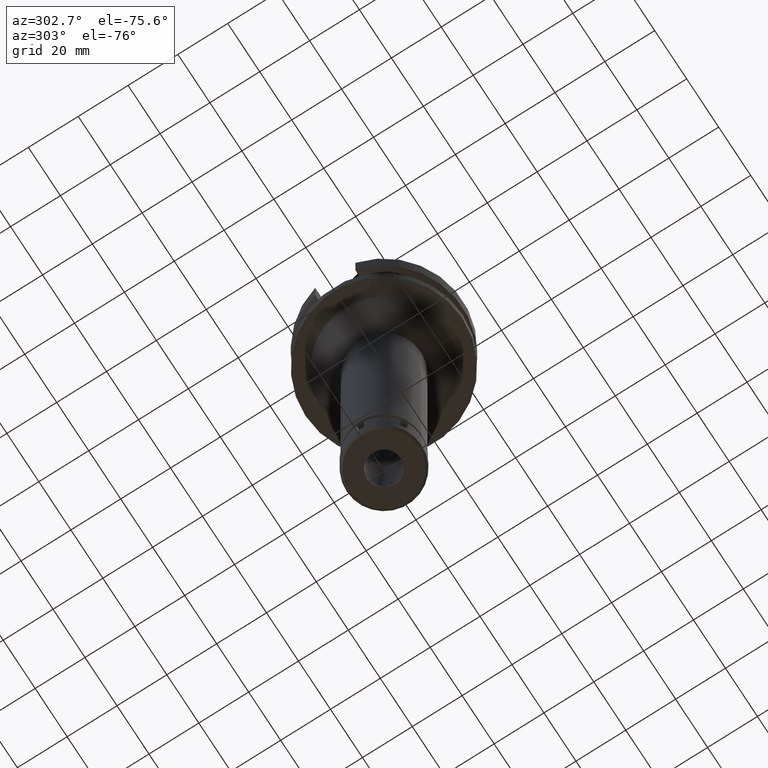
[diagram: clean part render]
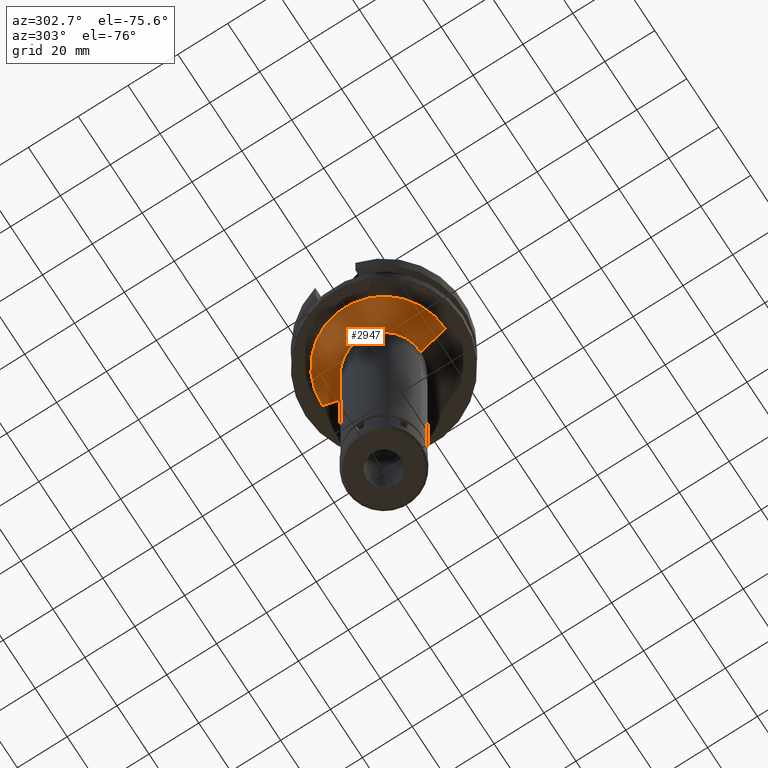
[diagram: same view with one face highlighted and labeled with its STEP entity id]
A machine part, auxiliary view. The second image highlights one B-rep face of the part: STEP entity #2947.
In plain terms, the highlighted conical surface has half-angle 45 deg.
Its self-contained STEP definition (entity closure, byte-faithful):
#131 = AXIS2_PLACEMENT_3D ( 'NONE', #258, #3090, #308 ) ;
#258 = CARTESIAN_POINT ( 'NONE',  ( 0.0000000000000000000, 0.0000000000000000000, -27.00000000000000000 ) ) ;
#308 = DIRECTION ( 'NONE',  ( 0.0000000000000000000, -1.000000000000000000, 0.0000000000000000000 ) ) ;
#789 = VERTEX_POINT ( 'NONE', #3604 ) ;
#846 = ORIENTED_EDGE ( 'NONE', *, *, #3330, .F. ) ;
#988 = DIRECTION ( 'NONE',  ( 0.0000000000000000000, -1.000000000000000000, 0.0000000000000000000 ) ) ;
#1064 = DIRECTION ( 'NONE',  ( 0.0000000000000000000, -0.7071067811865474617, -0.7071067811865474617 ) ) ;
#1258 = CARTESIAN_POINT ( 'NONE',  ( 0.0000000000000000000, 0.0000000000000000000, -32.00000000000000000 ) ) ;
#1295 = DIRECTION ( 'NONE',  ( 0.0000000000000000000, 0.0000000000000000000, 1.000000000000000000 ) ) ;
#1338 = VERTEX_POINT ( 'NONE', #3434 ) ;
#1391 = ORIENTED_EDGE ( 'NONE', *, *, #2654, .F. ) ;
#1483 = AXIS2_PLACEMENT_3D ( 'NONE', #1258, #1295, #3524 ) ;
#1661 = AXIS2_PLACEMENT_3D ( 'NONE', #2893, #2040, #988 ) ;
#1671 = VECTOR ( 'NONE', #3029, 1000.000000000000114 ) ;
#1707 = VERTEX_POINT ( 'NONE', #2816 ) ;
#1926 = LINE ( 'NONE', #2750, #1671 ) ;
#2040 = DIRECTION ( 'NONE',  ( 0.0000000000000000000, 0.0000000000000000000, -1.000000000000000000 ) ) ;
#2059 = EDGE_CURVE ( 'NONE', #2384, #1338, #2714, .T. ) ;
#2384 = VERTEX_POINT ( 'NONE', #2844 ) ;
#2531 = CIRCLE ( 'NONE', #1661, 14.75000000000000000 ) ;
#2593 = CONICAL_SURFACE ( 'NONE', #1483, 19.75000000000000000, 0.7853981633972997312 ) ;
#2626 = EDGE_CURVE ( 'NONE', #1338, #789, #3382, .T. ) ;
#2654 = EDGE_CURVE ( 'NONE', #2384, #1707, #1926, .T. ) ;
#2714 = CIRCLE ( 'NONE', #131, 24.75000000000000000 ) ;
#2750 = CARTESIAN_POINT ( 'NONE',  ( 0.0000000000000000000, -24.75000000000000000, -27.00000000000000000 ) ) ;
#2816 = CARTESIAN_POINT ( 'NONE',  ( 0.0000000000000000000, -14.75000000000000000, -37.00000000000000000 ) ) ;
#2844 = CARTESIAN_POINT ( 'NONE',  ( 0.0000000000000000000, -24.75000000000000000, -27.00000000000000000 ) ) ;
#2893 = CARTESIAN_POINT ( 'NONE',  ( 0.0000000000000000000, 0.0000000000000000000, -37.00000000000000000 ) ) ;
#2947 = ADVANCED_FACE ( 'NONE', ( #3199 ), #2593, .T. ) ;
#3029 = DIRECTION ( 'NONE',  ( 0.0000000000000000000, 0.7071067811865474617, -0.7071067811865474617 ) ) ;
#3090 = DIRECTION ( 'NONE',  ( 0.0000000000000000000, 0.0000000000000000000, -1.000000000000000000 ) ) ;
#3199 = FACE_OUTER_BOUND ( 'NONE', #3233, .T. ) ;
#3233 = EDGE_LOOP ( 'NONE', ( #846, #1391, #3576, #3435 ) ) ;
#3330 = EDGE_CURVE ( 'NONE', #1707, #789, #2531, .T. ) ;
#3382 = LINE ( 'NONE', #3586, #3550 ) ;
#3434 = CARTESIAN_POINT ( 'NONE',  ( 0.0000000000000000000, 24.75000000000000000, -27.00000000000000000 ) ) ;
#3435 = ORIENTED_EDGE ( 'NONE', *, *, #2626, .T. ) ;
#3524 = DIRECTION ( 'NONE',  ( 0.0000000000000000000, 1.000000000000000000, 0.0000000000000000000 ) ) ;
#3550 = VECTOR ( 'NONE', #1064, 1000.000000000000114 ) ;
#3576 = ORIENTED_EDGE ( 'NONE', *, *, #2059, .T. ) ;
#3586 = CARTESIAN_POINT ( 'NONE',  ( 0.0000000000000000000, 24.75000000000000000, -27.00000000000000000 ) ) ;
#3604 = CARTESIAN_POINT ( 'NONE',  ( 0.0000000000000000000, 14.75000000000000000, -37.00000000000000000 ) ) ;